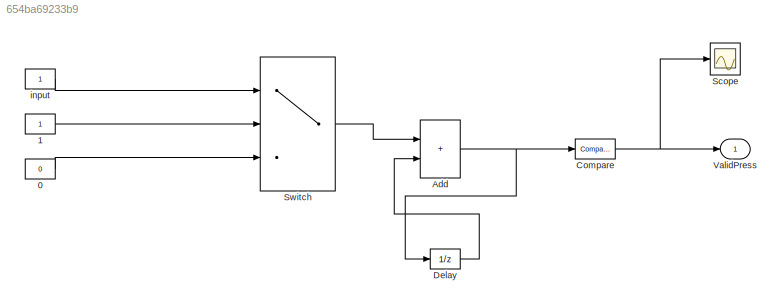
MODEL slx_654ba69233b9
KIND model
CONFIG AbsTol = auto
CONFIG EnableMultiTasking = off
CONFIG FixedStep = 0.02
CONFIG MaxStep = auto
CONFIG MinStep = auto
CONFIG RelTol = 1e-3
CONFIG SampleTimeConstraint = Unconstrained
CONFIG SolverName = FixedStepDiscrete
CONFIG StartTime = 0.0
CONFIG StopTime = 10.0
BLOCK [Constant] 0
  Value = 0
BLOCK [Constant] 1
BLOCK [Sum] Add
  IconShape = rectangular
BLOCK [Reference] Compare  REF=simulink/Logic and Bit
Operations/Compare
To Constant
  SourceBlock = simulink/Logic and Bit\nOperations/Compare\nTo Constant
  SourceType = Compare To Constant
BLOCK [UnitDelay] Delay
  HasFrameUpgradeWarning = on
  SampleTime = 0.1
BLOCK [Scope] Scope
  ActiveDisplayYMaximum = 1.125
  ActiveDisplayYMinimum = -0.12499999999999997
  Floating = off
  GraphicalSettings = {"Style":{"BackgroundColor":[0.12941176470588237,0.12941176470588237,0.12941176470588237],"AxesColor":[0.07058823529411765,0.07058823529411765,0.07058823529411765],"LabelsColor":[0.8509803921568627,0.8509803921568627,0.8509803921568627],"PreserveColors":false,"Visible":[true],"LineStyle":["-"],"LineWidth":[1.5],"BarWidth":[0.9],"LineColor":["auto"],"LineFaceAlpha":[1],"LineEdgeAlpha":[1],"Marker":...<+1942ch>
  MultipleDisplayCache = [{"MaxYLimMag":1.125,"MaxYLimReal":1.125,"MinYLimMag":0,"MinYLimReal":-0.12499999999999997,"PlotAsMagnitudePhase":false,"ShowGrid":true,"ShowLegend":false,"Title":"%<SignalLabel>","YLabel":""}]
  NumInputPorts = 1
  ScopeFrameLocation = window
  WasSavedAsWebScope = on
  WindowPosition = [708.000000,146.000000,560.000000,420.000000,]
BLOCK [Switch] Switch
  Criteria = u2 > Threshold
  InputSameDT = off
  SaturateOnIntegerOverflow = off
  Threshold = 0.5
BLOCK [Outport] ValidPress
BLOCK [Constant] input
LINE 0:1 -> Switch:3
LINE 1:1 -> Switch:2
NET Add:1 -> Compare:1, Delay:1
NET Compare:1 -> Scope:1, ValidPress:1
LINE Delay:1 -> Add:2
LINE Switch:1 -> Add:1
LINE input:1 -> Switch:1
note: NET lines group one-source signal fan-out (src -> all destinations, sorted); 1:1 wires keep LINE
